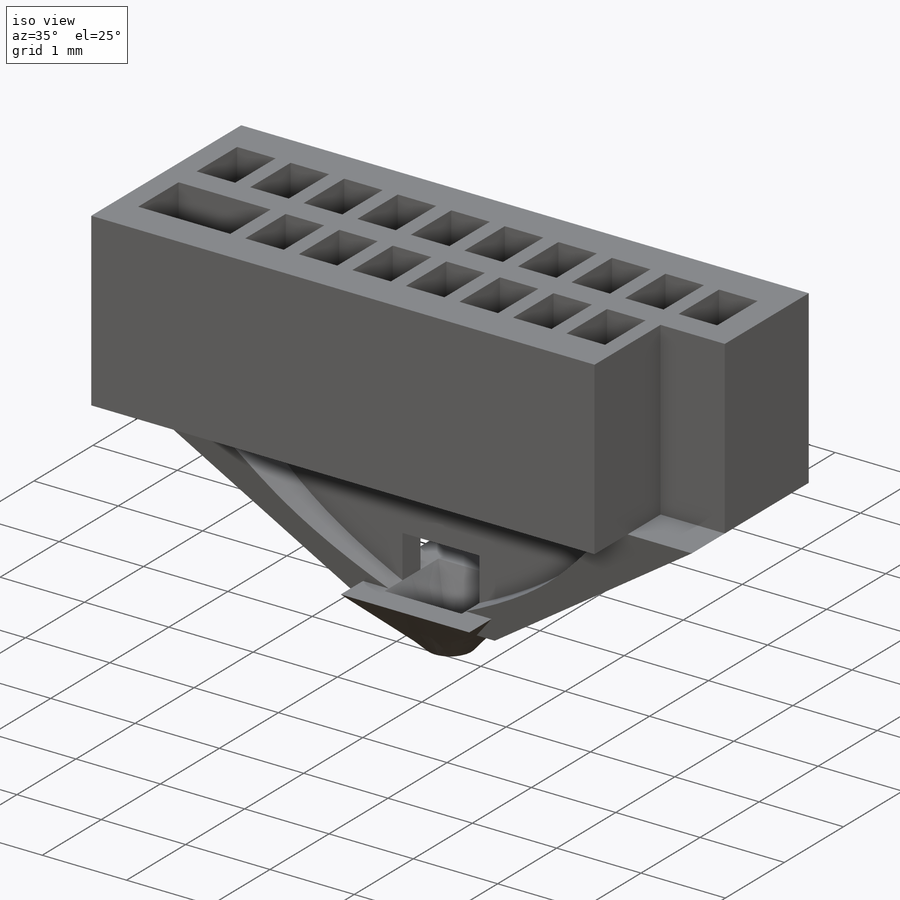
[diagram: iso view]
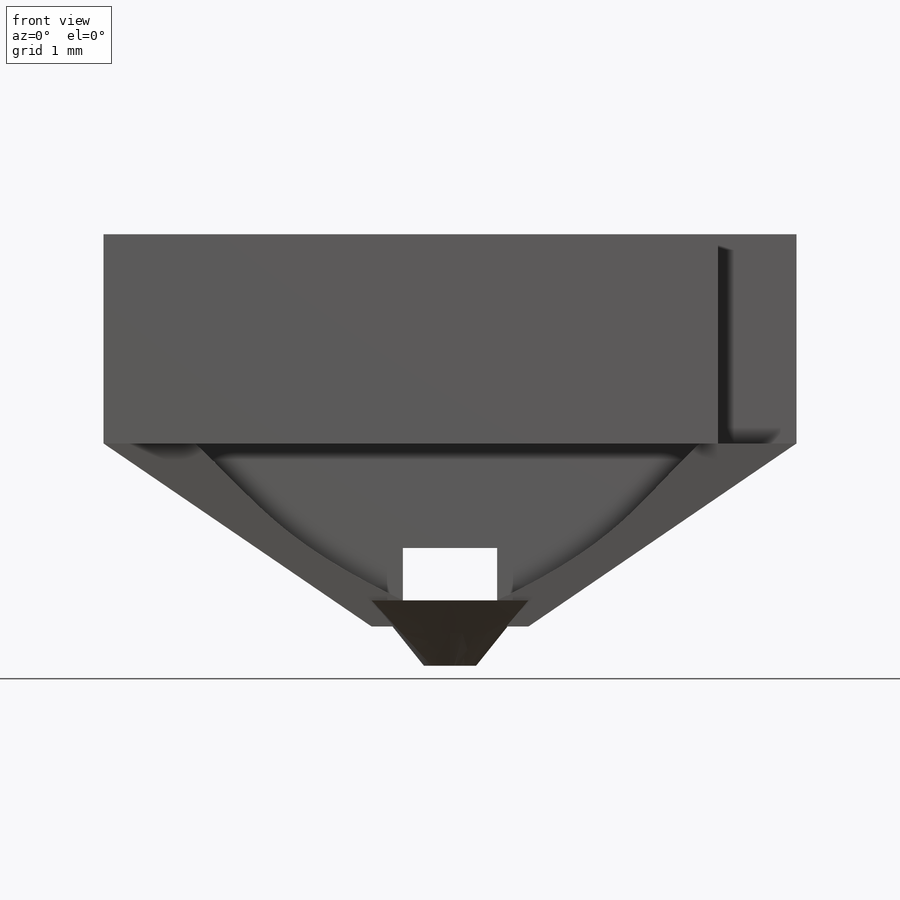
[diagram: front view]
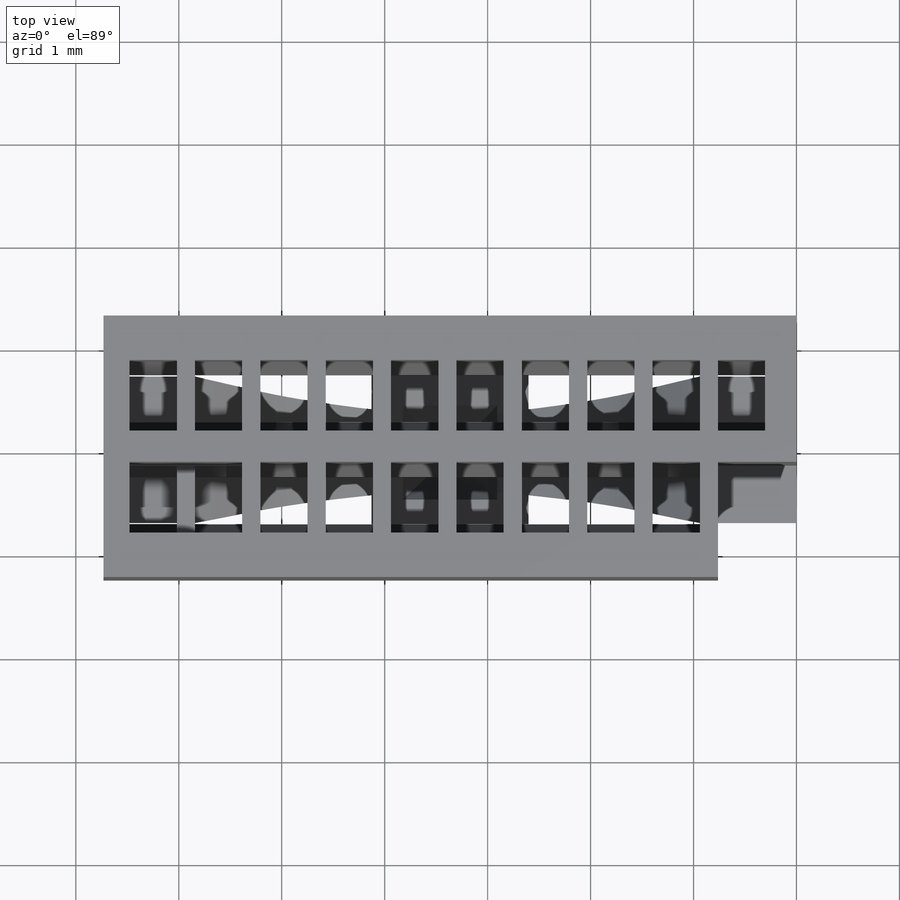
[diagram: top view]
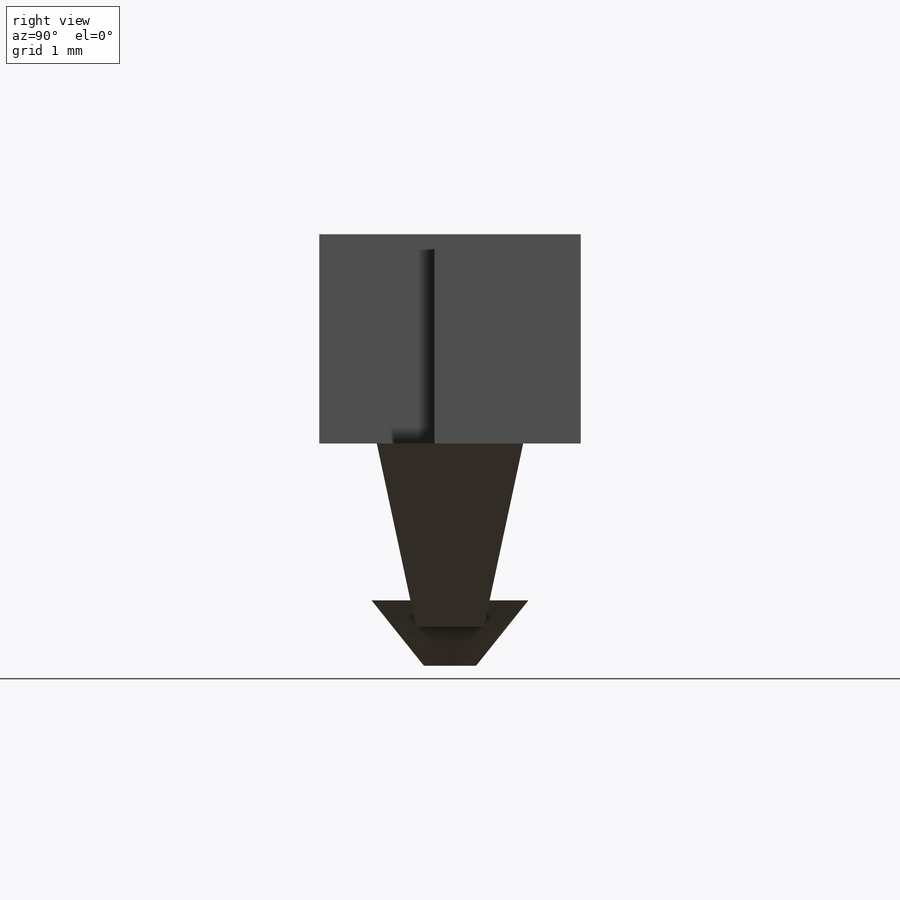
[diagram: right view]
SOLIDWORKS PART (.sldprt)
format: sldprt  version: not decoded by parser v0  size: 1,390,080 bytes
history: native  units: mm
features: sketch x39, cut_extrude x9, plane x4, pattern_linear x2, material x1, extrude x1 + 1 further entry (+11 scaffold rows collapsed)
feature tree (68):
  scaffold x11  (default folders/planes/origin — collapsed)
  material  "Material <not specified>"
  "Annotations"  RD1=2.54mm RD3=1.143mm RD5=1.778mm RD2=0.254mm RD4=0.3048mm RD6=2.54mm RD7=0.4318mm RD8=0.4318mm RD9=0.3048mm RD10=0.6858mm RD11=0.6858mm RD13=6.731mm RD14=0.254mm
  sketch  "Sketch1"  dims[D1=6.731mm D2=3.81mm D3=~3.807887mm]
  extrude  "Boss-Extrude1"  Depth=2.54mm
  plane  "Plane1"  Offset=1.143mm
  plane  "Plane8"  Offset=2.032mm
  sketch  "Sketch16"  dims[D1=0.4572mm D2=0.6858mm D3=0.4318mm D4=0.254mm D7=0.3048mm D8=0.889mm D9=0.6477mm D10=0.4318mm D11=0.6858mm D5=10.0 D6=2.0]
  sketch  "Sketch23"  dims[D1=10.0 D2=2.0]
  sketch  "Sketch24"  dims[D1=0.4572mm D2=0.4572mm D4=2.0 D5=10.0 D6=2.0]
  pattern_linear  "LPattern2"  Count1=10 Count2=2 Spacing1=0.635mm Spacing2=0.9906mm
  sketch  "Sketch23<3>"
  pattern_linear  "LPattern3"  Count1=10 Count2=2 Spacing1=0.635mm Spacing2=0.9906mm
  sketch  "Sketch25"  dims[D1=2.7305mm D2=1.27mm D3=0.762mm D4=2.7305mm D5=0.889mm D6=0.889mm]
  sketch  "3DSketch2"
  sketch  "Sketch28"
  sketch  "Sketch30"
  sketch  "Sketch31"
  sketch  "Sketch32"
  sketch  "Sketch33"  dims[D1=0.127mm]
  sketch  "Sketch34"  dims[D1=0.127mm D2=0.762mm]
  sketch  "Sketch35"
  sketch  "Sketch36"
  sketch  "3DSketch4"
  cut_extrude  "Cut-Extrude1"  Depth=2.54mm
  sketch  "3DSketch5"
  cut_extrude  "Cut-Extrude2"  Depth=2.54mm
  plane  "Plane9"  Offset=2.159mm
  sketch  "Sketch37"  dims[D1=0.508mm]
  sketch  "Sketch38"  dims[D1=0.508mm]
  sketch  "Sketch41"  dims[D1=0.508mm]
  sketch  "Sketch42"  dims[D1=0.508mm]
  sketch  "3DSketch9"
  sketch  "3DSketch6"
  cut_extrude  "Cut-Extrude3"  Depth=1.27mm
  sketch  "3DSketch7"
  cut_extrude  "Cut-Extrude4"  Depth=1.27mm
  sketch  "3DSketch12"
  sketch  "3DSketch8"
  sketch  "Sketch48"
  cut_extrude  "Cut-Extrude5"  Depth=2.032mm
  sketch  "Sketch49"
  cut_extrude  "Cut-Extrude6"  Depth=1.27mm
  cut_extrude  "Cut-Extrude13"  [1 undecoded]
  sketch  "3DSketch7<2>"  dims[D1=0.5588mm]
  cut_extrude  "Cut-Extrude14"  [1 undecoded]
  sketch  "3DSketch6<2>"  dims[D1=0.5588mm]
  plane  "Plane10"  Offset=1.524mm
  sketch  "Sketch55"  dims[D1=0.1778mm]
  sketch  "Sketch56"  dims[D1=0.381mm]
  sketch  "Sketch57"  dims[D1=1.524mm D2=0.4318mm D3=0.762mm]
  sketch  "Sketch59"  dims[c1.D1=0.0mm c1.D2=0.0mm c1.D3=0.9144mm c1.D4=0.3048mm c1.D5=0.3048mm c2.D1=0.9144mm c2.D2=0.3048mm]
  sketch  "Sketch60"
  sketch  "Sketch59<4>"
  sketch  "Sketch61"  dims[D1=0.3048mm D2=0.1143mm D3=0.1143mm D4=0.0mm D5=0.0mm]
  sketch  "Sketch62"  dims[D1=0.3048mm D2=0.0mm D3=1.6764mm D4=0.381mm D5=0.381mm]
  cut_extrude  "Cut-Extrude15"  [1 undecoded]
  sketch  "Sketch59<2>"  dims[D1=0.508mm]
decode coverage: 29 of 51 modeling features carry decoded parameters; 1 rows unclassified (native names shown)
note: ~ marks probable driven/reference dimensions
note: 3 parameter values undecoded
summary: no parameter record found for 3 features
note: suppression state not decoded; provenance and decode notes live in map.json
